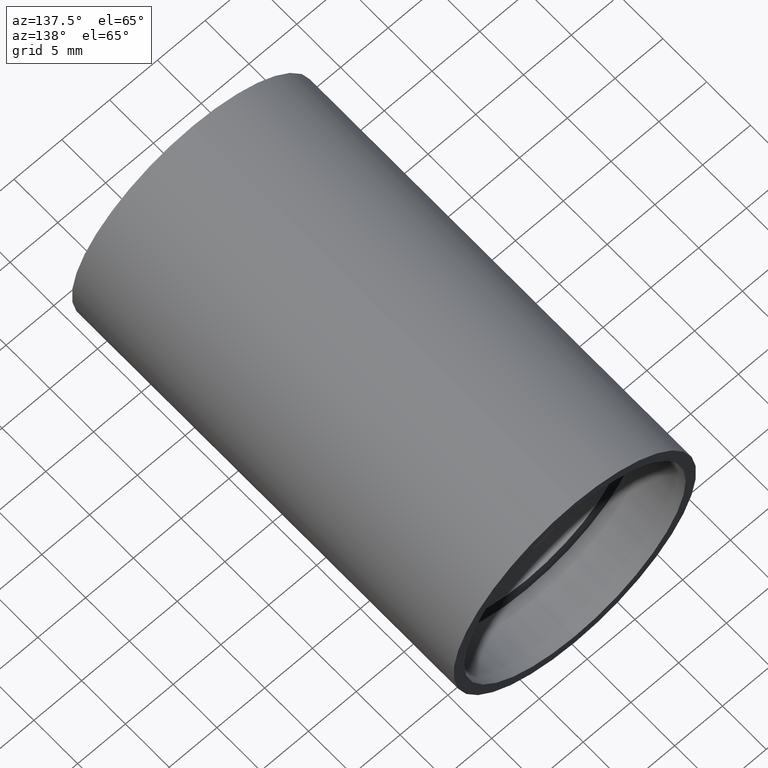
[diagram: clean part render]
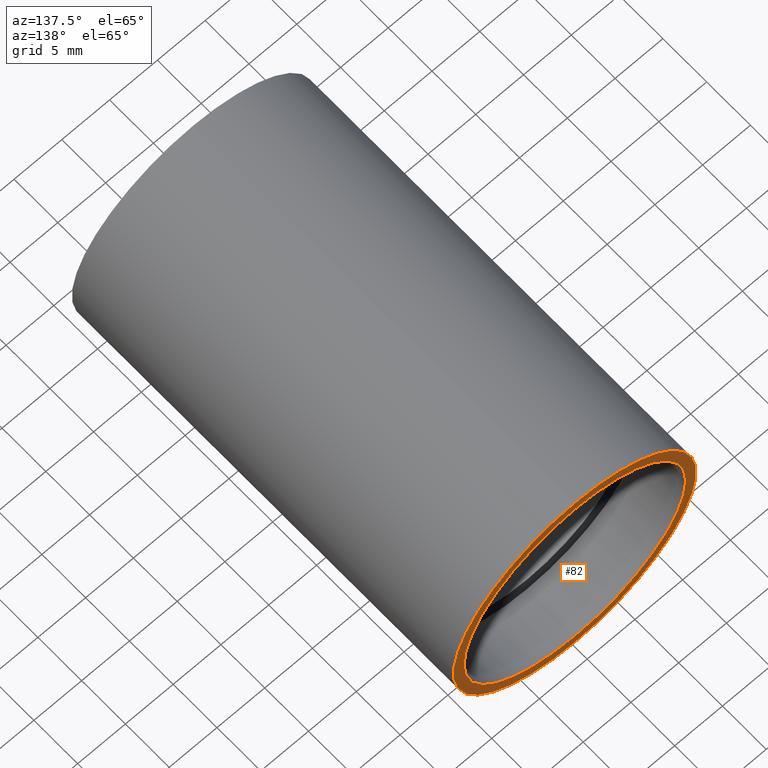
[diagram: same view with one face highlighted and labeled with its STEP entity id]
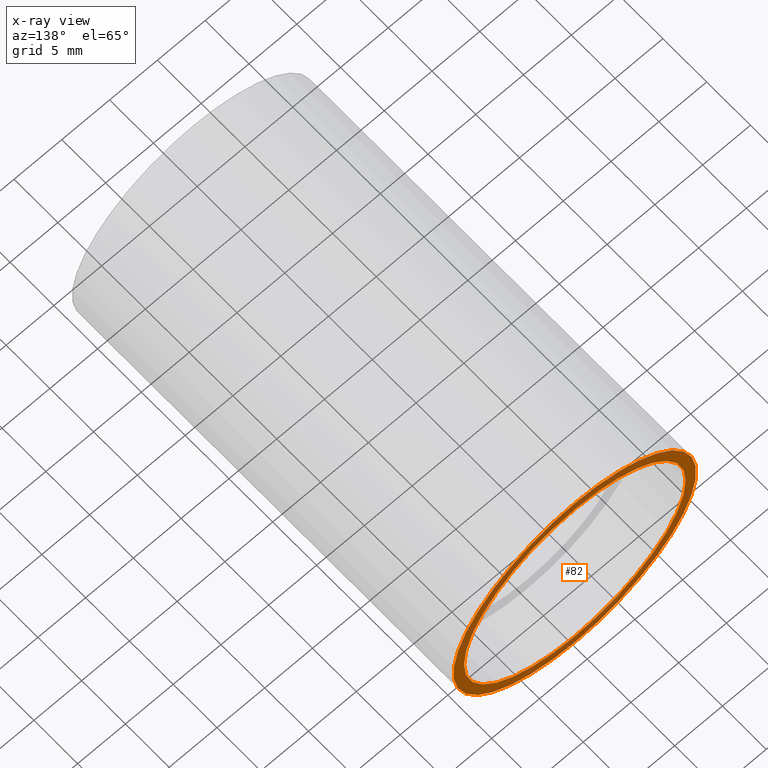
[diagram: x-ray of the same camera — body ghosted, the highlighted face saturated]
A machine part, auxiliary view. The second image highlights one B-rep face of the part: STEP entity #82.
The next image is the same camera in x-ray: the body ghosted, the highlighted face saturated — about 0% of this face is hidden behind the body in this view.
In plain terms, the highlighted planar face has unit normal (0, -1, 0).
Its self-contained STEP definition (entity closure, byte-faithful):
#11 = AXIS2_PLACEMENT_3D ( 'NONE', #307, #556, #204 ) ;
#27 = VERTEX_POINT ( 'NONE', #148 ) ;
#64 = EDGE_LOOP ( 'NONE', ( #553, #301 ) ) ;
#75 = CIRCLE ( 'NONE', #270, 12.70000000000001900 ) ;
#82 = ADVANCED_FACE ( 'NONE', ( #300, #551 ), #439, .F. ) ;
#86 = CIRCLE ( 'NONE', #240, 12.70000000000001900 ) ;
#130 = EDGE_CURVE ( 'NONE', #568, #343, #86, .T. ) ;
#144 = DIRECTION ( 'NONE',  ( 0.0000000000000000000, -0.0000000000000000000, -1.000000000000000000 ) ) ;
#148 = CARTESIAN_POINT ( 'NONE',  ( 0.0000000000000000000, 43.59999999999998700, 11.60000000000003200 ) ) ;
#164 = EDGE_CURVE ( 'NONE', #343, #568, #75, .T. ) ;
#184 = CARTESIAN_POINT ( 'NONE',  ( 11.60000000000003200, 43.59999999999998700, 0.0000000000000000000 ) ) ;
#198 = CARTESIAN_POINT ( 'NONE',  ( 0.0000000000000000000, 43.59999999999998700, 12.70000000000001900 ) ) ;
#204 = DIRECTION ( 'NONE',  ( 0.0000000000000000000, 0.0000000000000000000, 1.000000000000000000 ) ) ;
#213 = DIRECTION ( 'NONE',  ( -0.0000000000000000000, 1.000000000000000000, -0.0000000000000000000 ) ) ;
#240 = AXIS2_PLACEMENT_3D ( 'NONE', #515, #213, #562 ) ;
#270 = AXIS2_PLACEMENT_3D ( 'NONE', #604, #367, #608 ) ;
#271 = DIRECTION ( 'NONE',  ( 0.0000000000000000000, 0.0000000000000000000, 1.000000000000000000 ) ) ;
#284 = CIRCLE ( 'NONE', #11, 11.60000000000003200 ) ;
#300 = FACE_BOUND ( 'NONE', #64, .T. ) ;
#301 = ORIENTED_EDGE ( 'NONE', *, *, #520, .F. ) ;
#307 = CARTESIAN_POINT ( 'NONE',  ( 0.0000000000000000000, 43.59999999999998700, 0.0000000000000000000 ) ) ;
#343 = VERTEX_POINT ( 'NONE', #550 ) ;
#367 = DIRECTION ( 'NONE',  ( -0.0000000000000000000, 1.000000000000000000, -0.0000000000000000000 ) ) ;
#378 = VERTEX_POINT ( 'NONE', #546 ) ;
#429 = CARTESIAN_POINT ( 'NONE',  ( 0.0000000000000000000, 43.59999999999998700, 0.0000000000000000000 ) ) ;
#439 = PLANE ( 'NONE',  #587 ) ;
#445 = DIRECTION ( 'NONE',  ( 0.0000000000000000000, -1.000000000000000000, 0.0000000000000000000 ) ) ;
#465 = CIRCLE ( 'NONE', #600, 11.60000000000003200 ) ;
#487 = EDGE_LOOP ( 'NONE', ( #561, #517 ) ) ;
#488 = EDGE_CURVE ( 'NONE', #27, #378, #465, .T. ) ;
#515 = CARTESIAN_POINT ( 'NONE',  ( 0.0000000000000000000, 43.59999999999998700, 0.0000000000000000000 ) ) ;
#517 = ORIENTED_EDGE ( 'NONE', *, *, #164, .T. ) ;
#520 = EDGE_CURVE ( 'NONE', #378, #27, #284, .T. ) ;
#525 = DIRECTION ( 'NONE',  ( -0.0000000000000000000, 1.000000000000000000, -0.0000000000000000000 ) ) ;
#546 = CARTESIAN_POINT ( 'NONE',  ( 1.420590287010933700E-015, 43.59999999999998700, -11.60000000000003200 ) ) ;
#550 = CARTESIAN_POINT ( 'NONE',  ( 1.555301434917140800E-015, 43.59999999999998700, -12.70000000000001900 ) ) ;
#551 = FACE_OUTER_BOUND ( 'NONE', #487, .T. ) ;
#553 = ORIENTED_EDGE ( 'NONE', *, *, #488, .F. ) ;
#556 = DIRECTION ( 'NONE',  ( -0.0000000000000000000, 1.000000000000000000, -0.0000000000000000000 ) ) ;
#561 = ORIENTED_EDGE ( 'NONE', *, *, #130, .T. ) ;
#562 = DIRECTION ( 'NONE',  ( 0.0000000000000000000, 0.0000000000000000000, 1.000000000000000000 ) ) ;
#568 = VERTEX_POINT ( 'NONE', #198 ) ;
#587 = AXIS2_PLACEMENT_3D ( 'NONE', #184, #445, #144 ) ;
#600 = AXIS2_PLACEMENT_3D ( 'NONE', #429, #525, #271 ) ;
#604 = CARTESIAN_POINT ( 'NONE',  ( 0.0000000000000000000, 43.59999999999998700, 0.0000000000000000000 ) ) ;
#608 = DIRECTION ( 'NONE',  ( 0.0000000000000000000, 0.0000000000000000000, 1.000000000000000000 ) ) ;